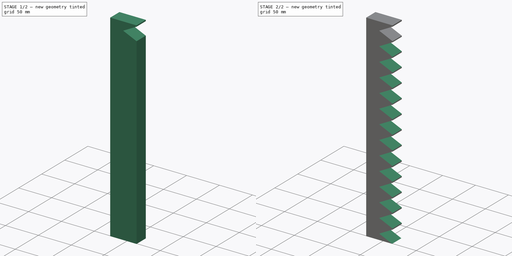
[diagram: build sequence overview — one tinted view per stage of 2, left to right]
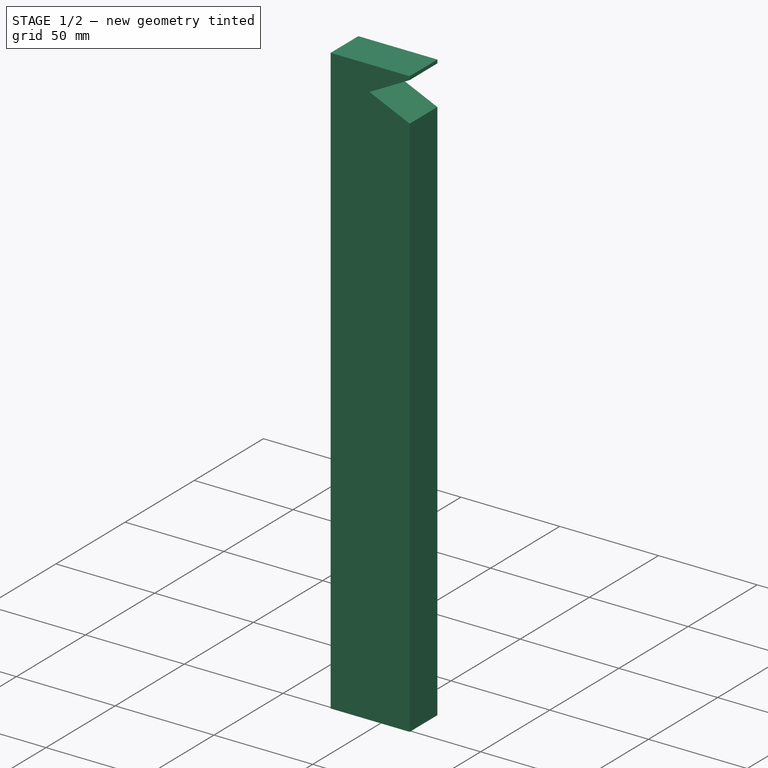
[diagram: stage 1 of 2 — iso view after this stage's code; geometry added in this stage tinted green]
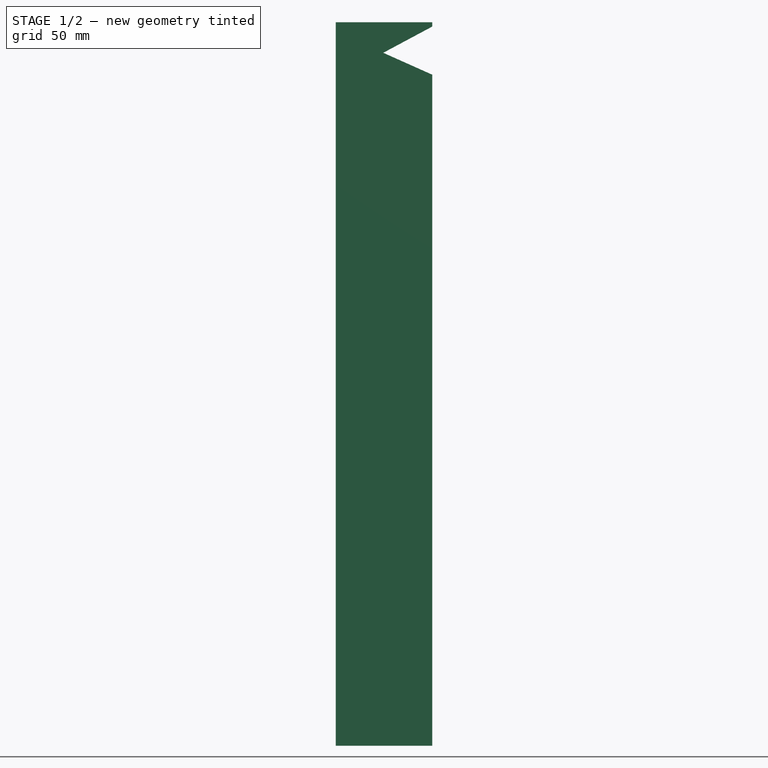
[diagram: stage 1 of 2 — front view after this stage's code; geometry added in this stage tinted green]
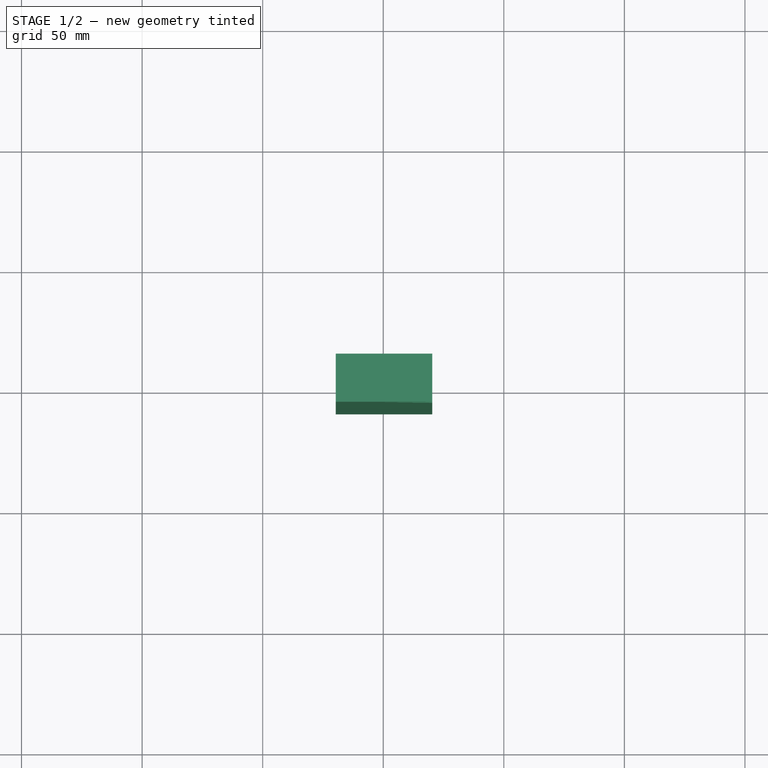
[diagram: stage 1 of 2 — top view after this stage's code; geometry added in this stage tinted green]
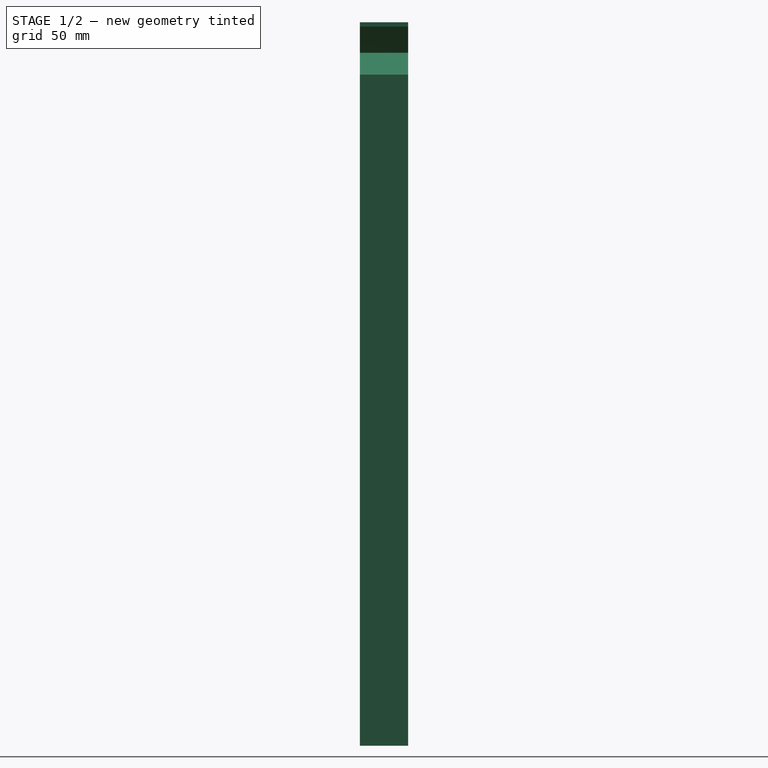
[diagram: stage 1 of 2 — right view after this stage's code; geometry added in this stage tinted green]
FCSTD DOCUMENT  (FreeCAD 0.21R33771 (Git))
Label: Machine Elment Design4
License: All rights reserved
LicenseURL: http://en.wikipedia.org/wiki/All_rights_reserved
objects: Sketcher::SketchObject×2, PartDesign::Pad×1, PartDesign::Pocket×1, PartDesign::LinearPattern×1, PartDesign::MultiTransform×1, PartDesign::Body×1
note: 9 computed .brp shape members not serialized (recipe doc carries the construction recipe); baked Part::Feature solids carry a one-line shape summary decoded from their .brp

FEATURE [Sketcher::SketchObject] Sketch
  FullyConstrained = false
  MapMode = 45
  Placement = pos=(-1e-16,1.42e-14,26.6122) rot=(0,0,1;0rad)
  sketch-geometry (4):
    g0: LineSegment StartX=-19.6873 StartY=-8.86837 StartZ=0 EndX=20.3127 EndY=-8.86837 EndZ=0
    g1: LineSegment StartX=20.3127 StartY=-8.86837 StartZ=0 EndX=20.3127 EndY=11.1316 EndZ=0
    g2: LineSegment StartX=20.3127 StartY=11.1316 StartZ=0 EndX=-19.6873 EndY=11.1316 EndZ=0
    g3: LineSegment StartX=-19.6873 StartY=11.1316 StartZ=0 EndX=-19.6873 EndY=-8.86837 EndZ=0
  constraints (10):
    c: Coincident(g0,g1)
    c: Coincident(g1,g2)
    c: Coincident(g2,g3)
    c: Coincident(g3,g0)
    c: Horizontal(g0)
    c: Horizontal(g2)
    c: Vertical(g1)
    c: Vertical(g3)
    c: Distance(g0) = 40
    c: Distance(g3) = 20
FEATURE [PartDesign::Pad] Pad
  Direction = (0,-1e-16,1)
  Length = 300
  Length2 = 10
  Placement = pos=(-1e-16,1.42e-14,26.6122) rot=(0,0,1;0rad)
  Profile = -> Sketch
  ReferenceAxis = -> Sketch [N_Axis]
  Type = 0
FEATURE [Sketcher::SketchObject] Sketch001
  FullyConstrained = false
  MapMode = 5
  Placement = pos=(0,0,0) rot=(1,0,0;1.5708rad)
  Support = -> [XZ_Plane]
  sketch-geometry (3):
    g0: LineSegment StartX=21.004 StartY=325.207 StartZ=0 EndX=21.004 EndY=304.576 EndZ=0
    g1: LineSegment StartX=21.004 StartY=304.576 StartZ=0 EndX=0 EndY=313.961 EndZ=0
    g2: LineSegment StartX=0 StartY=313.961 StartZ=0 EndX=21.004 EndY=325.207 EndZ=0
  constraints (5):
    c: Vertical(g0)
    c: Coincident(g1,g0)
    c: PointOnObject(g1,g-2)
    c: Coincident(g2,g1)
    c: Coincident(g2,g0)
FEATURE [PartDesign::Pocket] Pocket
  BaseFeature = -> Pad
  Direction = (0,1,2e-16)
  Length = 24
  Length2 = 5
  Midplane = true
  Placement = pos=(-1e-16,1.42e-14,26.6122) rot=(0,0,1;0rad)
  Profile = -> Sketch001
  ReferenceAxis = -> Sketch001 [N_Axis]
  Type = 0
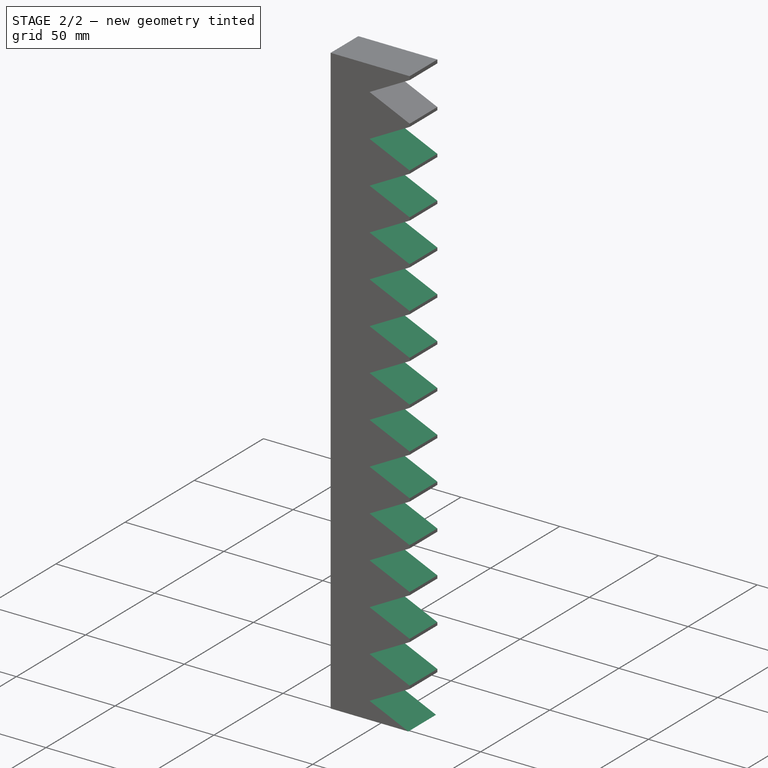
[diagram: stage 2 of 2 — iso view after this stage's code; geometry added in this stage tinted green]
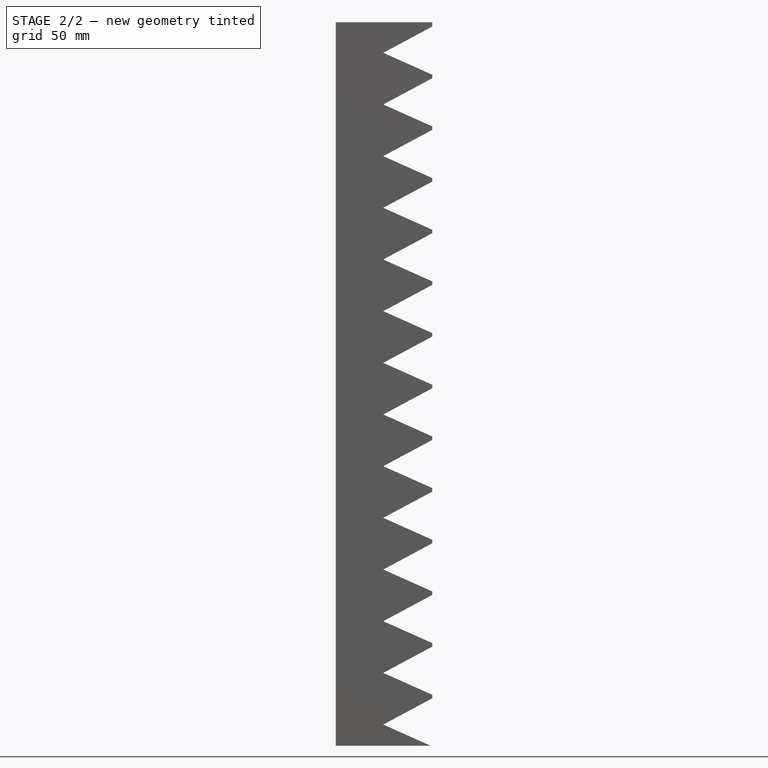
[diagram: stage 2 of 2 — front view after this stage's code; geometry added in this stage tinted green]
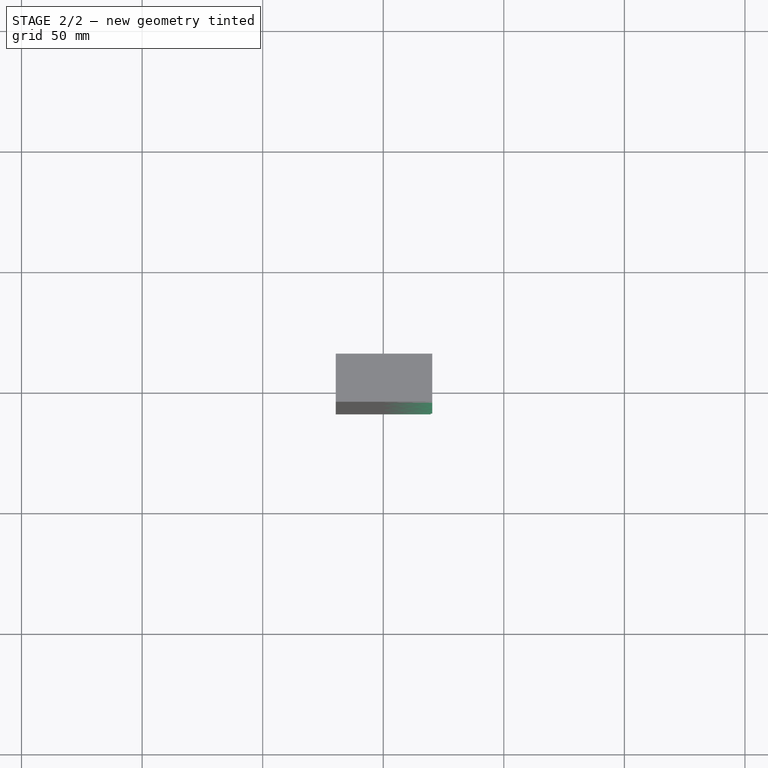
[diagram: stage 2 of 2 — top view after this stage's code; geometry added in this stage tinted green]
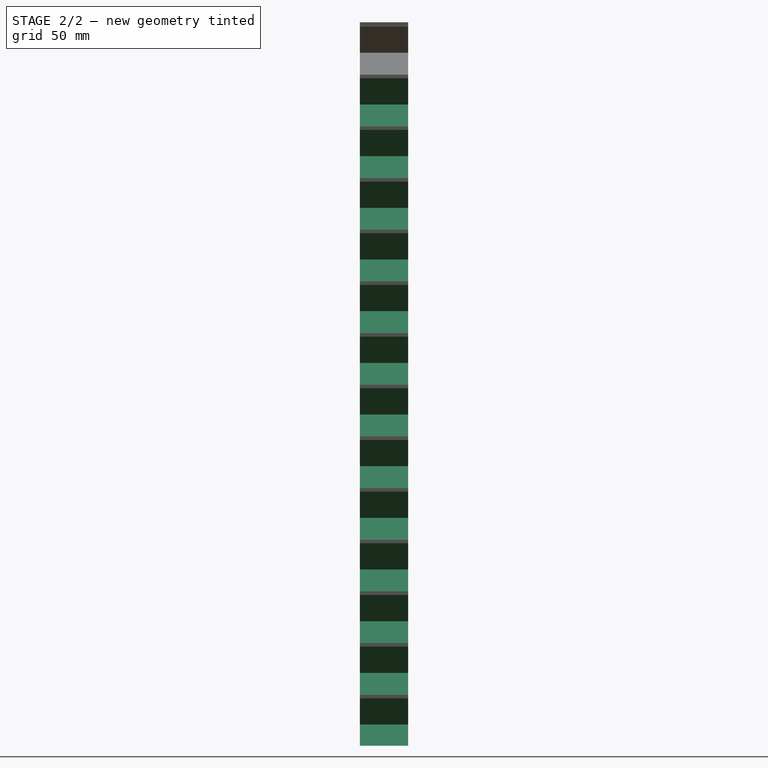
[diagram: stage 2 of 2 — right view after this stage's code; geometry added in this stage tinted green]
FEATURE [PartDesign::LinearPattern] LinearPattern
  Direction = -> Sketch001 [V_Axis]
  Length = 300
  Occurrences = 15
  Placement = pos=(-1e-16,1.42e-14,26.6122) rot=(0,0,1;0rad)
  Reversed = true
FEATURE [PartDesign::MultiTransform] MultiTransform
  BaseFeature = -> Pocket
  Originals = -> [Pocket]
  Placement = pos=(-1e-16,1.42e-14,26.6122) rot=(0,0,1;0rad)
  Transformations = -> [LinearPattern]
FEATURE [PartDesign::Body] Body  label="Rack"
  Group = -> [Sketch,Pad,Sketch001,Pocket,MultiTransform,LinearPattern]
  Origin = -> Origin
  Placement = pos=(784,-496,0) rot=(0,0,1;0rad)
  Tip = -> MultiTransform
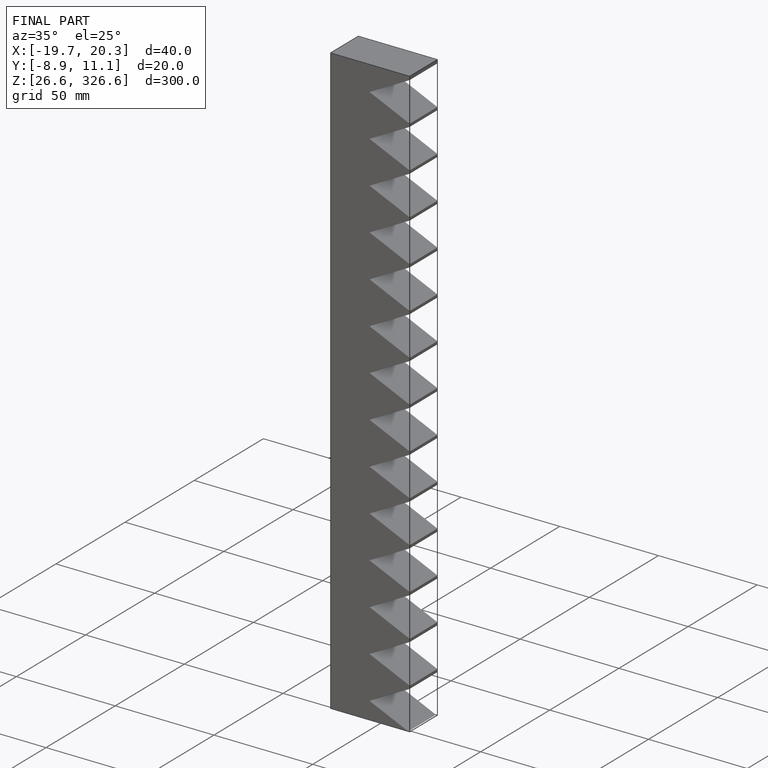
[diagram: finished part — iso view with bounding-box wireframe]
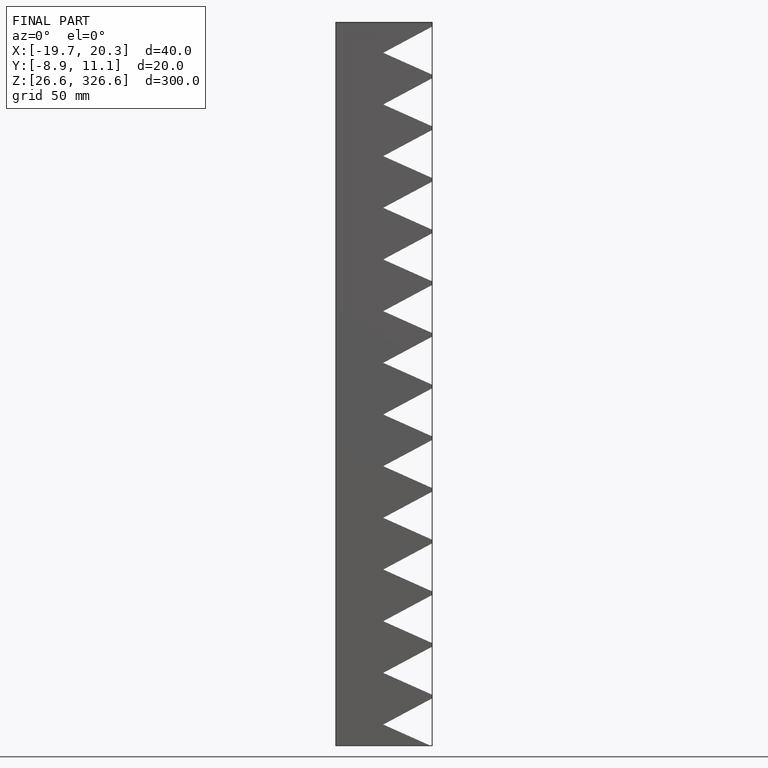
[diagram: finished part — front view with bounding-box wireframe]
